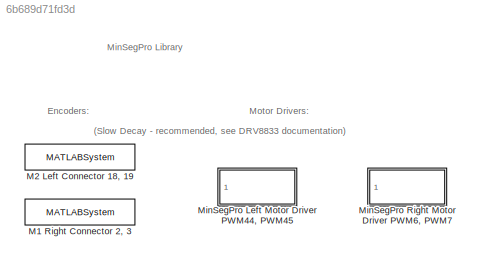
MODEL slx_6b689d71fd3d
KIND library
CONFIG AbsTol = auto
CONFIG FixedStep = auto
CONFIG MaxStep = auto
CONFIG MinStep = auto
CONFIG RelTol = 1e-3
CONFIG SampleTimeConstraint = Unconstrained
CONFIG Solver = ode45
CONFIG SolverMode = Auto
CONFIG SolverName = ode45
CONFIG StartTime = 0.0
CONFIG StopTime = 10.0
BLOCK [MATLABSystem] M1 Right Connector 2, 3
  Encoder = 0
  MaskDisplay = disp('soEncoder');\nport_label('output',1,'y');
  MaskType = Encoder_arduino
  PWMFSelect = 3
  PWMTimer = -1
  PinA = 2
  PinB = 3
  Ports = [0, 1]
  System = Encoder_arduino
BLOCK [MATLABSystem] M2 Left Connector 18, 19
  Encoder = 1
  MaskDisplay = disp('soEncoder');\nport_label('output',1,'y');
  MaskType = Encoder_arduino
  PWMFSelect = 3
  PWMTimer = -1
  PinA = 19
  PinB = 18
  Ports = [0, 1]
  System = Encoder_arduino
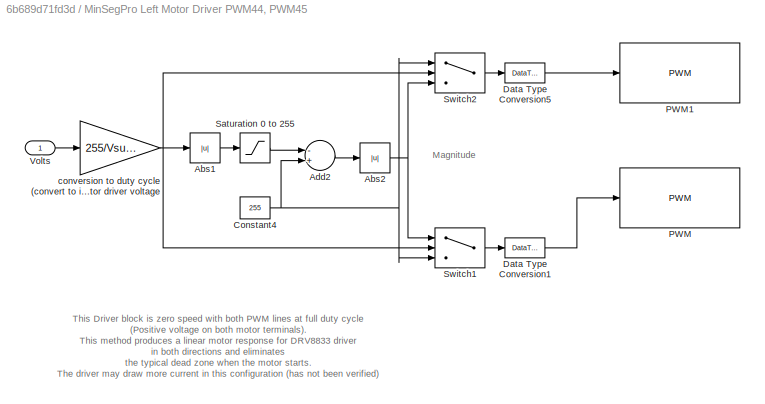
BLOCK [SubSystem] MinSegPro Left Motor Driver PWM44, PWM45
  Ports = [1]
  RequestExecContextInheritance = off
BLOCK [Abs] MinSegPro Left Motor Driver PWM44, PWM45/Abs1
  SaturateOnIntegerOverflow = off
BLOCK [Abs] MinSegPro Left Motor Driver PWM44, PWM45/Abs2
  SaturateOnIntegerOverflow = off
BLOCK [Sum] MinSegPro Left Motor Driver PWM44, PWM45/Add2
  InputSameDT = off
  Inputs = -+
  OutDataTypeStr = Inherit: Inherit via internal rule
  Ports = [2, 1]
  SaturateOnIntegerOverflow = off
BLOCK [Constant] MinSegPro Left Motor Driver PWM44, PWM45/Constant4
  Value = 255
BLOCK [DataTypeConversion] MinSegPro Left Motor Driver PWM44, PWM45/Data Type Conversion1
  OutDataTypeStr = uint8
  RndMeth = Floor
  SaturateOnIntegerOverflow = off
BLOCK [DataTypeConversion] MinSegPro Left Motor Driver PWM44, PWM45/Data Type Conversion5
  OutDataTypeStr = uint8
  RndMeth = Floor
  SaturateOnIntegerOverflow = off
BLOCK [Reference] MinSegPro Left Motor Driver PWM44, PWM45/PWM  REF=arduinolib/PWM
  Ports = [1]
  SourceBlock = arduinolib/PWM
  SourceType = Arduino PWM
  blockPlatform = arduino
  pinNumber = 45
BLOCK [Reference] MinSegPro Left Motor Driver PWM44, PWM45/PWM1  REF=arduinolib/PWM
  Ports = [1]
  SourceBlock = arduinolib/PWM
  SourceType = Arduino PWM
  blockPlatform = arduino
  pinNumber = 44
BLOCK [Saturate] MinSegPro Left Motor Driver PWM44, PWM45/Saturation 0 to 255
  InputPortMap = u0
  LowerLimit = 0
  Ports = [1, 1]
  UpperLimit = 255
BLOCK [Switch] MinSegPro Left Motor Driver PWM44, PWM45/Switch1
  InputSameDT = off
  SaturateOnIntegerOverflow = off
BLOCK [Switch] MinSegPro Left Motor Driver PWM44, PWM45/Switch2
  InputSameDT = off
  SaturateOnIntegerOverflow = off
BLOCK [Inport] MinSegPro Left Motor Driver PWM44, PWM45/Volts
  IconDisplay = Port number
BLOCK [Gain] MinSegPro Left Motor Driver PWM44, PWM45/conversion to duty cycle (convert to int) denominator is motor driver voltage
  Gain = 255/Vsupply
  OutDataTypeStr = int16
  ParamDataTypeStr = Inherit: Inherit via internal rule
  SaturateOnIntegerOverflow = off
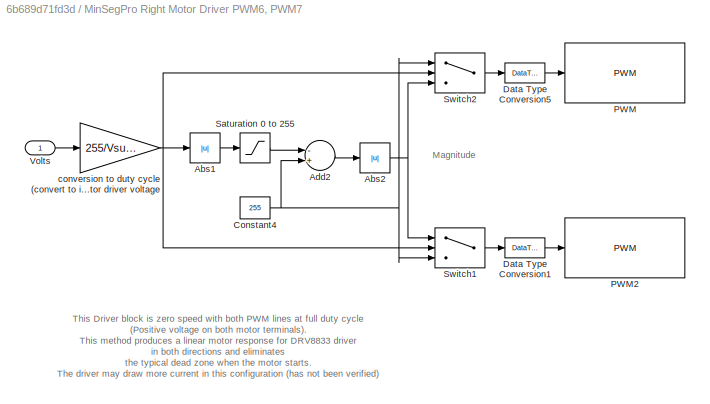
BLOCK [SubSystem] MinSegPro Right Motor Driver PWM6, PWM7 
  Ports = [1]
  RequestExecContextInheritance = off
BLOCK [Abs] MinSegPro Right Motor Driver PWM6, PWM7 /Abs1
  SaturateOnIntegerOverflow = off
BLOCK [Abs] MinSegPro Right Motor Driver PWM6, PWM7 /Abs2
  SaturateOnIntegerOverflow = off
BLOCK [Sum] MinSegPro Right Motor Driver PWM6, PWM7 /Add2
  InputSameDT = off
  Inputs = -+
  OutDataTypeStr = Inherit: Inherit via internal rule
  Ports = [2, 1]
  SaturateOnIntegerOverflow = off
BLOCK [Constant] MinSegPro Right Motor Driver PWM6, PWM7 /Constant4
  Value = 255
BLOCK [DataTypeConversion] MinSegPro Right Motor Driver PWM6, PWM7 /Data Type Conversion1
  OutDataTypeStr = uint8
  RndMeth = Floor
  SaturateOnIntegerOverflow = off
BLOCK [DataTypeConversion] MinSegPro Right Motor Driver PWM6, PWM7 /Data Type Conversion5
  OutDataTypeStr = uint8
  RndMeth = Floor
  SaturateOnIntegerOverflow = off
BLOCK [Reference] MinSegPro Right Motor Driver PWM6, PWM7 /PWM  REF=arduinolib/PWM
  Ports = [1]
  SourceBlock = arduinolib/PWM
  SourceType = Arduino PWM
  blockPlatform = arduino
  pinNumber = 6
BLOCK [Reference] MinSegPro Right Motor Driver PWM6, PWM7 /PWM2  REF=arduinolib/PWM
  Ports = [1]
  SourceBlock = arduinolib/PWM
  SourceType = Arduino PWM
  blockPlatform = arduino
  pinNumber = 7
BLOCK [Saturate] MinSegPro Right Motor Driver PWM6, PWM7 /Saturation 0 to 255
  InputPortMap = u0
  LowerLimit = 0
  Ports = [1, 1]
  UpperLimit = 255
BLOCK [Switch] MinSegPro Right Motor Driver PWM6, PWM7 /Switch1
  InputSameDT = off
  SaturateOnIntegerOverflow = off
BLOCK [Switch] MinSegPro Right Motor Driver PWM6, PWM7 /Switch2
  InputSameDT = off
  SaturateOnIntegerOverflow = off
BLOCK [Inport] MinSegPro Right Motor Driver PWM6, PWM7 /Volts
  IconDisplay = Port number
BLOCK [Gain] MinSegPro Right Motor Driver PWM6, PWM7 /conversion to duty cycle (convert to int) denominator is motor driver voltage
  Gain = 255/Vsupply
  OutDataTypeStr = int16
  ParamDataTypeStr = Inherit: Inherit via internal rule
  SaturateOnIntegerOverflow = off
ANNOTATION (root): (Slow Decay - recommended, see DRV8833 documentation)
ANNOTATION (root): MinSegPro Library
ANNOTATION (root): Encoders:
ANNOTATION (root): Motor Drivers:
ANNOTATION MinSegPro Left Motor Driver PWM44, PWM45: Magnitude
ANNOTATION MinSegPro Left Motor Driver PWM44, PWM45: This Driver block is zero speed with both PWM lines at full duty cycle (Positive voltage on both motor terminals). This method produces a linear motor response for DRV8833 driver in both directions and eliminates the typical dead zone when the motor starts. The driver may draw more current in this configuration (has not been verified) The SN754410 driver this has no effect, so the driver could alt...<+76ch>
ANNOTATION MinSegPro Right Motor Driver PWM6, PWM7 : Magnitude
ANNOTATION MinSegPro Right Motor Driver PWM6, PWM7 : This Driver block is zero speed with both PWM lines at full duty cycle (Positive voltage on both motor terminals). This method produces a linear motor response for DRV8833 driver in both directions and eliminates the typical dead zone when the motor starts. The driver may draw more current in this configuration (has not been verified) The SN754410 driver this has no effect, so the driver could alt...<+76ch>
LINE MinSegPro Left Motor Driver PWM44, PWM45/Abs1:1 -> MinSegPro Left Motor Driver PWM44, PWM45/Saturation 0 to 255:1
NET MinSegPro Left Motor Driver PWM44, PWM45/Abs2:1 -> MinSegPro Left Motor Driver PWM44, PWM45/Switch1:1, MinSegPro Left Motor Driver PWM44, PWM45/Switch2:3
LINE MinSegPro Left Motor Driver PWM44, PWM45/Add2:1 -> MinSegPro Left Motor Driver PWM44, PWM45/Abs2:1
NET MinSegPro Left Motor Driver PWM44, PWM45/Constant4:1 -> MinSegPro Left Motor Driver PWM44, PWM45/Add2:2, MinSegPro Left Motor Driver PWM44, PWM45/Switch1:3, MinSegPro Left Motor Driver PWM44, PWM45/Switch2:1
LINE MinSegPro Left Motor Driver PWM44, PWM45/Data Type Conversion1:1 -> MinSegPro Left Motor Driver PWM44, PWM45/PWM:1
LINE MinSegPro Left Motor Driver PWM44, PWM45/Data Type Conversion5:1 -> MinSegPro Left Motor Driver PWM44, PWM45/PWM1:1
LINE MinSegPro Left Motor Driver PWM44, PWM45/Saturation 0 to 255:1 -> MinSegPro Left Motor Driver PWM44, PWM45/Add2:1
LINE MinSegPro Left Motor Driver PWM44, PWM45/Switch1:1 -> MinSegPro Left Motor Driver PWM44, PWM45/Data Type Conversion1:1
LINE MinSegPro Left Motor Driver PWM44, PWM45/Switch2:1 -> MinSegPro Left Motor Driver PWM44, PWM45/Data Type Conversion5:1
LINE MinSegPro Left Motor Driver PWM44, PWM45/Volts:1 -> MinSegPro Left Motor Driver PWM44, PWM45/conversion to duty cycle (convert to int) denominator is motor driver voltage:1
NET MinSegPro Left Motor Driver PWM44, PWM45/conversion to duty cycle (convert to int) denominator is motor driver voltage:1 -> MinSegPro Left Motor Driver PWM44, PWM45/Abs1:1, MinSegPro Left Motor Driver PWM44, PWM45/Switch1:2, MinSegPro Left Motor Driver PWM44, PWM45/Switch2:2
LINE MinSegPro Right Motor Driver PWM6, PWM7 /Abs1:1 -> MinSegPro Right Motor Driver PWM6, PWM7 /Saturation 0 to 255:1
NET MinSegPro Right Motor Driver PWM6, PWM7 /Abs2:1 -> MinSegPro Right Motor Driver PWM6, PWM7 /Switch1:1, MinSegPro Right Motor Driver PWM6, PWM7 /Switch2:3
LINE MinSegPro Right Motor Driver PWM6, PWM7 /Add2:1 -> MinSegPro Right Motor Driver PWM6, PWM7 /Abs2:1
NET MinSegPro Right Motor Driver PWM6, PWM7 /Constant4:1 -> MinSegPro Right Motor Driver PWM6, PWM7 /Add2:2, MinSegPro Right Motor Driver PWM6, PWM7 /Switch1:3, MinSegPro Right Motor Driver PWM6, PWM7 /Switch2:1
LINE MinSegPro Right Motor Driver PWM6, PWM7 /Data Type Conversion1:1 -> MinSegPro Right Motor Driver PWM6, PWM7 /PWM2:1
LINE MinSegPro Right Motor Driver PWM6, PWM7 /Data Type Conversion5:1 -> MinSegPro Right Motor Driver PWM6, PWM7 /PWM:1
LINE MinSegPro Right Motor Driver PWM6, PWM7 /Saturation 0 to 255:1 -> MinSegPro Right Motor Driver PWM6, PWM7 /Add2:1
LINE MinSegPro Right Motor Driver PWM6, PWM7 /Switch1:1 -> MinSegPro Right Motor Driver PWM6, PWM7 /Data Type Conversion1:1
LINE MinSegPro Right Motor Driver PWM6, PWM7 /Switch2:1 -> MinSegPro Right Motor Driver PWM6, PWM7 /Data Type Conversion5:1
LINE MinSegPro Right Motor Driver PWM6, PWM7 /Volts:1 -> MinSegPro Right Motor Driver PWM6, PWM7 /conversion to duty cycle (convert to int) denominator is motor driver voltage:1
NET MinSegPro Right Motor Driver PWM6, PWM7 /conversion to duty cycle (convert to int) denominator is motor driver voltage:1 -> MinSegPro Right Motor Driver PWM6, PWM7 /Abs1:1, MinSegPro Right Motor Driver PWM6, PWM7 /Switch1:2, MinSegPro Right Motor Driver PWM6, PWM7 /Switch2:2
note: NET lines group one-source signal fan-out (src -> all destinations, sorted); 1:1 wires keep LINE
